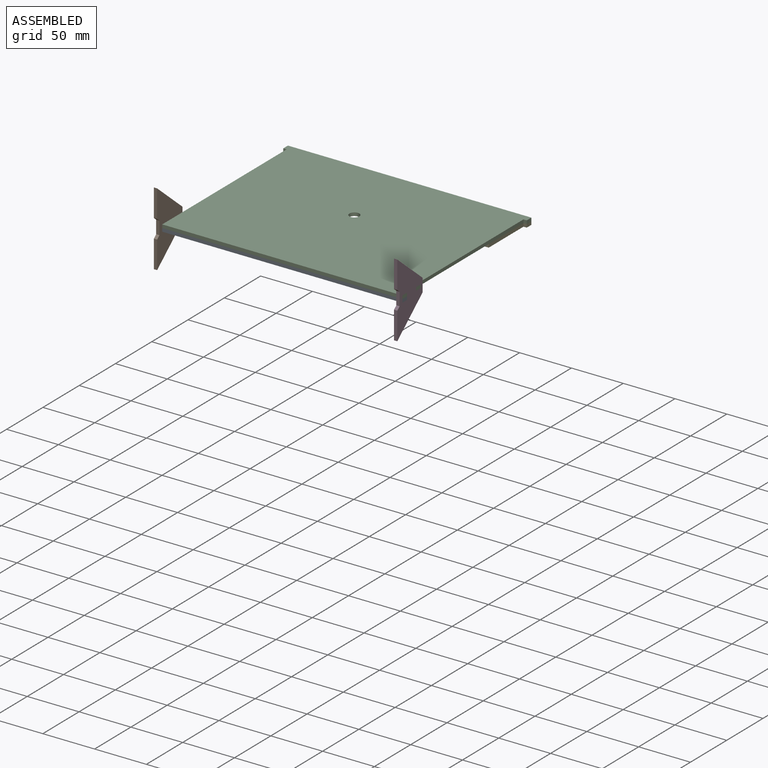
[diagram: assembled view]
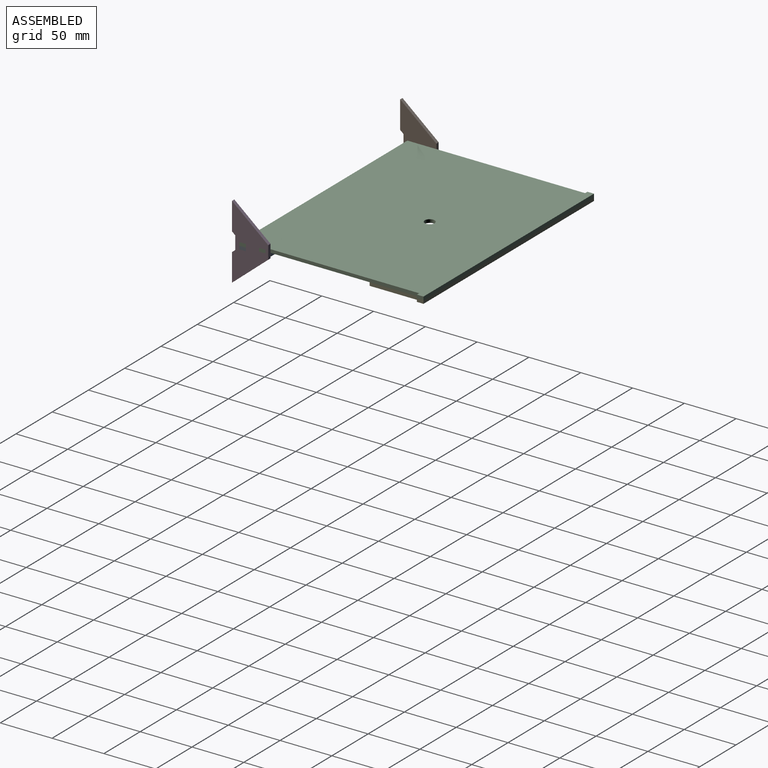
[diagram: assembled view, second angle]
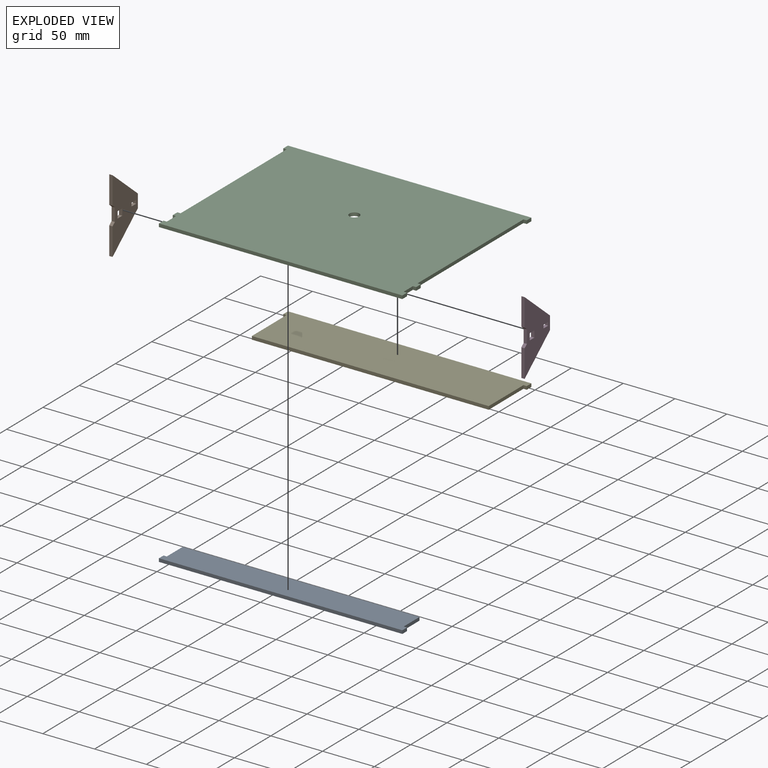
[diagram: exploded view]
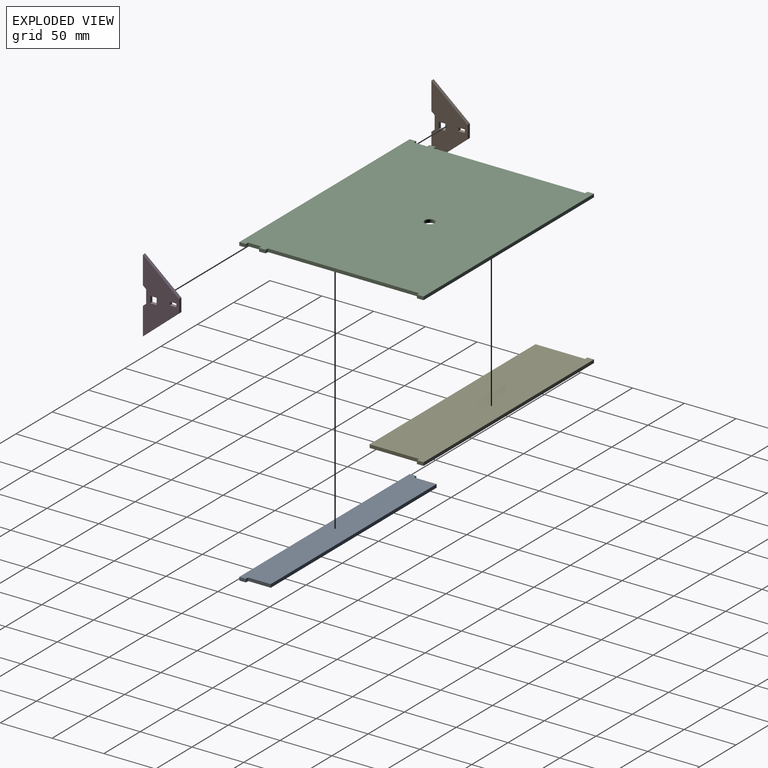
[diagram: exploded view, second angle]
ASSEMBLY  parts=5 mates=4
PART A: 10 faces, bbox 235x28.2x3.2 mm
  f0: plane 21.84x3.18mm, normal (1,0,0), area 69.4mm2, adj f1,f7,f8,f9
  f1: plane 3.18x3.18mm, normal (0,-1,0), area 10.1mm2, adj f0,f2,f8,f9
  f2: plane 6.35x3.18mm, normal (1,0,0), area 20.2mm2, adj f1,f3,f8,f9
  f3: plane 234.95x3.18mm, normal (0,1,0), area 746mm2, adj f2,f4,f8,f9
  f4: plane 6.35x3.18mm, normal (-1,0,0), area 20.2mm2, adj f3,f5,f8,f9
  f5: plane 3.18x3.18mm, normal (0,-1,0), area 10.1mm2, adj f4,f6,f8,f9
  f6: plane 21.84x3.18mm, normal (-1,0,0), area 69.4mm2, adj f5,f7,f8,f9
  f7: plane 228.6x3.18mm, normal (0,-1,0), area 725.8mm2, adj f0,f6,f8,f9
  f8: plane 234.95x28.19mm, normal (0,0,1), area 6485.5mm2, adj f0,f1,f2,f3,f4,f5,f6,f7
  f9: plane 234.95x28.19mm, normal (0,0,-1), area 6485.5mm2, adj f0,f1,f2,f3,f4,f5,f6,f7
PART B: 18 faces, bbox 71.3x34.9x3.2 mm
  f0: plane 6.35x3.18mm, normal (0,-1,0), area 20.2mm2, adj f1,f15,f16,f17
  f1: plane 6.35x3.18mm, normal (-1,0,0), area 20.2mm2, adj f0,f2,f16,f17
  f2: plane 6.35x3.18mm, normal (0,1,0), area 20.2mm2, adj f1,f15,f16,f17
  f3: plane 6.35x3.18mm, normal (1,0,0), area 20.2mm2, adj f4,f13,f16,f17
  f4: plane 3.18x3.18mm, normal (0,-1,0), area 10.1mm2, adj f3,f5,f16,f17
  f5: plane 6.35x3.18mm, normal (-1,0,0), area 20.2mm2, adj f4,f13,f16,f17
  f6: plane 12.7x3.18mm, normal (0,1,0), area 40.3mm2, adj f7,f14,f16,f17
  f7: plane 34.93x29.31mm, normal (-0.77,0.64,0), area 144.8mm2, adj f6,f8,f16,f17
  f8: plane 26.64x3.18mm, normal (0,-1,0), area 84.6mm2, adj f7,f9,f16,f17
  f9: plane 3.18x3.18mm, normal (0.77,-0.64,0), area 13.2mm2, adj f8,f10,f16,f17
  f10: plane 12.7x3.18mm, normal (0,-1,0), area 40.3mm2, adj f9,f11,f16,f17
  f11: plane 3.18x3.18mm, normal (-0.77,-0.64,0), area 13.2mm2, adj f10,f12,f16,f17
  f12: plane 26.64x3.18mm, normal (0,-1,0), area 84.6mm2, adj f11,f14,f16,f17
  f13: plane 3.18x3.18mm, normal (0,1,0), area 10.1mm2, adj f3,f5,f16,f17
  f14: plane 34.93x29.31mm, normal (0.77,0.64,0), area 144.8mm2, adj f6,f12,f16,f17
  f15: plane 6.35x3.18mm, normal (1,0,0), area 20.2mm2, adj f0,f2,f16,f17
  f16: plane 71.31x34.93mm, normal (0,0,1), area 1357.8mm2, adj f0,f1,f2,f3,f4,f5,f6,f7
  f17: plane 71.31x34.93mm, normal (0,0,-1), area 1357.8mm2, adj f0,f1,f2,f3,f4,f5,f6,f7
PART C: 23 faces, bbox 235x177.8x3.2 mm
  f0: plane 234.95x3.18mm, normal (0,-1,0), area 746mm2, adj f1,f19,f21,f22
  f1: plane 6.35x3.18mm, normal (1,0,0), area 20.2mm2, adj f0,f2,f21,f22
  f2: plane 3.18x3.18mm, normal (0,1,0), area 10.1mm2, adj f1,f3,f21,f22
  f3: plane 12.7x3.18mm, normal (1,0,0), area 40.3mm2, adj f2,f4,f21,f22
  f4: plane 3.18x3.18mm, normal (0,-1,0), area 10.1mm2, adj f3,f5,f21,f22
  f5: plane 6.35x3.18mm, normal (1,0,0), area 20.2mm2, adj f4,f6,f21,f22
  f6: plane 3.18x3.18mm, normal (0,1,0), area 10.1mm2, adj f5,f7,f21,f22
  f7: plane 146.05x3.18mm, normal (1,0,0), area 463.7mm2, adj f6,f8,f21,f22
  f8: plane 3.18x3.18mm, normal (0,-1,0), area 10.1mm2, adj f7,f9,f21,f22
  f9: plane 6.35x3.18mm, normal (1,0,0), area 20.2mm2, adj f8,f10,f21,f22
  f10: plane 234.95x3.18mm, normal (0,1,0), area 746mm2, adj f9,f11,f21,f22
  f11: plane 6.35x3.18mm, normal (-1,0,0), area 20.2mm2, adj f10,f12,f21,f22
  f12: plane 3.18x3.18mm, normal (0,-1,0), area 10.1mm2, adj f11,f13,f21,f22
  f13: plane 146.05x3.18mm, normal (-1,0,0), area 463.7mm2, adj f12,f14,f21,f22
  f14: plane 3.18x3.18mm, normal (0,1,0), area 10.1mm2, adj f13,f15,f21,f22
  f15: plane 6.35x3.18mm, normal (-1,0,0), area 20.2mm2, adj f14,f16,f21,f22
  f16: plane 3.18x3.18mm, normal (0,-1,0), area 10.1mm2, adj f15,f17,f21,f22
  f17: plane 12.7x3.18mm, normal (-1,0,0), area 40.3mm2, adj f16,f18,f21,f22
  f18: plane 3.18x3.18mm, normal (0,1,0), area 10.1mm2, adj f17,f19,f21,f22
  f19: plane 6.35x3.18mm, normal (-1,0,0), area 20.2mm2, adj f0,f18,f21,f22
  f20: cylinder r=4.76mm len=9.53mm, axis (0,0,-1), area 95mm2, adj f21,f22
  f21: plane 234.95x177.8mm, normal (0,0,1), area 40694.8mm2, adj f0,f1,f2,f3,f4,f5,f6,f7
  f22: plane 234.95x177.8mm, normal (0,0,-1), area 40694.8mm2, adj f0,f1,f2,f3,f4,f5,f6,f7
PART D: same geometry as B
PART E: 10 faces, bbox 235x54.2x3.2 mm
  f0: plane 47.88x3.18mm, normal (1,0,0), area 152mm2, adj f1,f7,f8,f9
  f1: plane 3.18x3.18mm, normal (0,-1,0), area 10.1mm2, adj f0,f2,f8,f9
  f2: plane 6.35x3.18mm, normal (1,0,0), area 20.2mm2, adj f1,f3,f8,f9
  f3: plane 234.95x3.18mm, normal (0,1,0), area 746mm2, adj f2,f4,f8,f9
  f4: plane 6.35x3.18mm, normal (-1,0,0), area 20.2mm2, adj f3,f5,f8,f9
  f5: plane 3.18x3.18mm, normal (0,-1,0), area 10.1mm2, adj f4,f6,f8,f9
  f6: plane 47.88x3.18mm, normal (-1,0,0), area 152mm2, adj f5,f7,f8,f9
  f7: plane 228.6x3.18mm, normal (0,-1,0), area 725.8mm2, adj f0,f6,f8,f9
  f8: plane 234.95x54.23mm, normal (0,0,1), area 12437.1mm2, adj f0,f1,f2,f3,f4,f5,f6,f7
  f9: plane 234.95x54.23mm, normal (0,0,-1), area 12437.1mm2, adj f0,f1,f2,f3,f4,f5,f6,f7
PLACE A rot(axis=(1,0,0),180deg) t=(-250.2,-192.27,-30.48)mm
PLACE B rot(axis=(0,1,0),90deg) t=(-253.37,-164.33,-28.89)mm
PLACE C t=(-250.2,-14.47,-30.48)mm
PLACE D rot(axis=(0,1,0),90deg) t=(-21.6,-164.33,-28.89)mm
PLACE E t=(-250.2,-14.47,-33.66)mm
MATE fastened A.f9 <-> C.f22  axis (0,0,1) through (-135.9,-192.27,-30.48)mm
MATE fastened D.f16 <-> C.f5  axis (1,0,0) through (-18.42,-173.22,-28.89)mm
MATE fastened B.f17 <-> C.f15  axis (-1,0,0) through (-253.37,-173.22,-28.89)mm
MATE fastened C.f22 <-> E.f8  axis (0,0,-1) through (-135.9,-14.47,-30.48)mm
